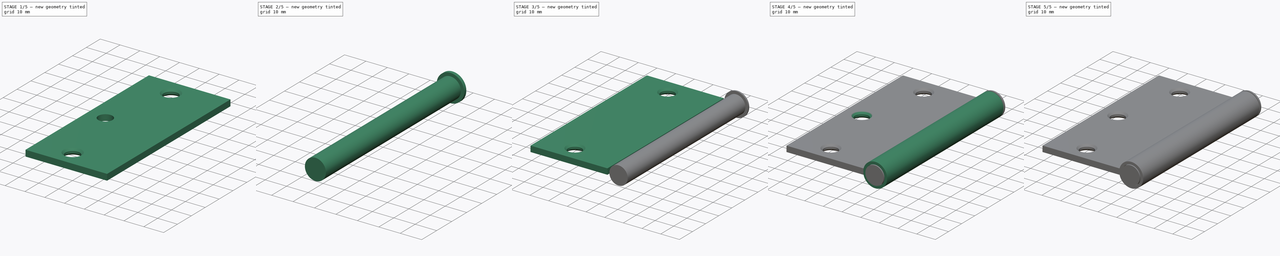
[diagram: build sequence overview — one tinted view per stage of 5, left to right]
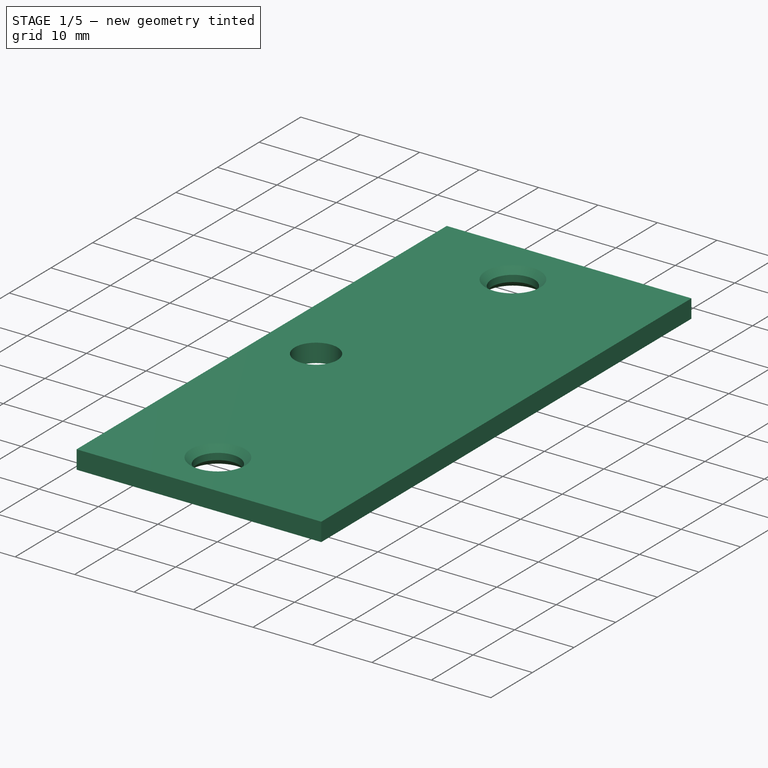
[diagram: stage 1 of 5 — iso view after this stage's code; geometry added in this stage tinted green]
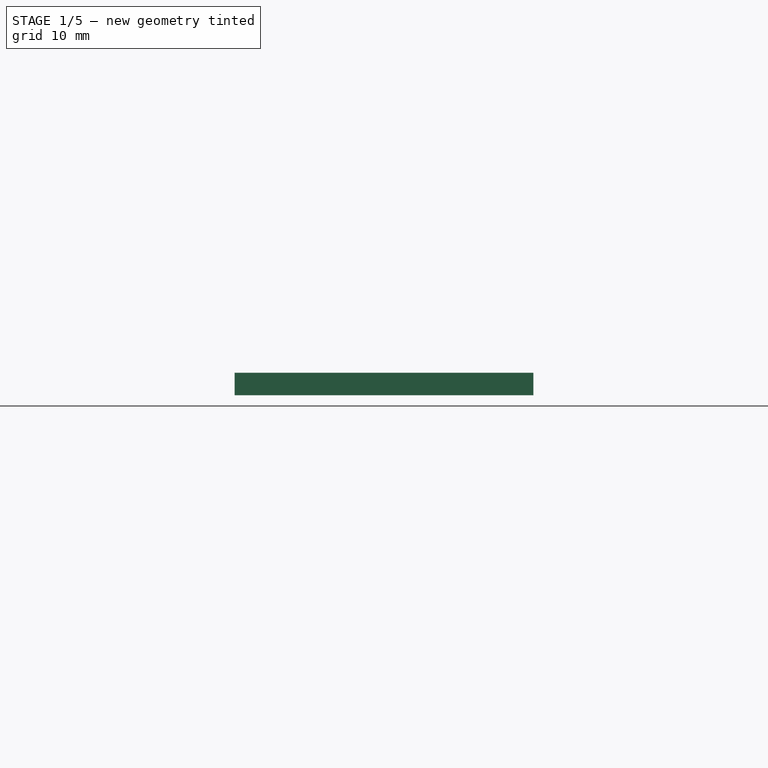
[diagram: stage 1 of 5 — front view after this stage's code; geometry added in this stage tinted green]
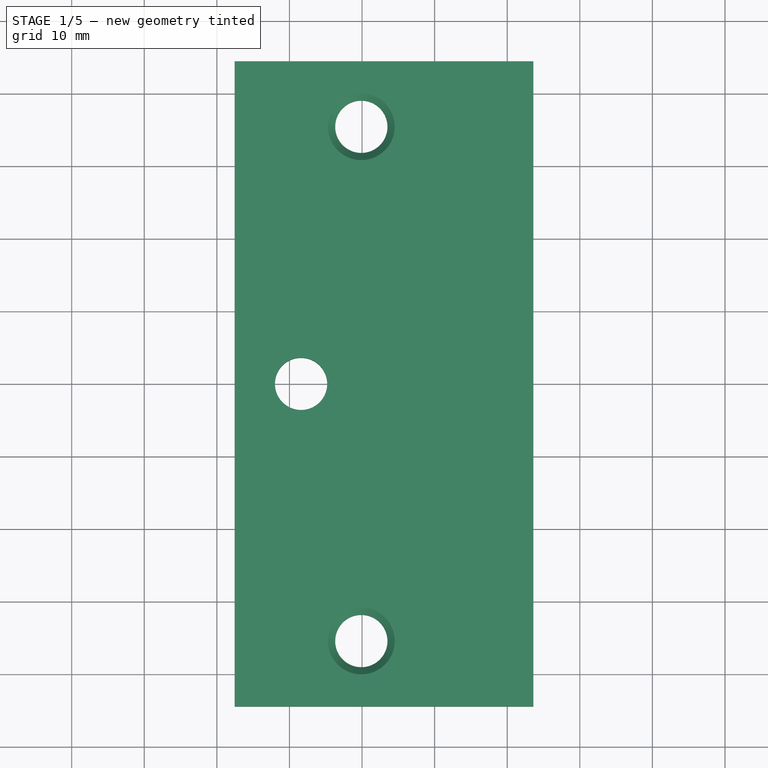
[diagram: stage 1 of 5 — top view after this stage's code; geometry added in this stage tinted green]
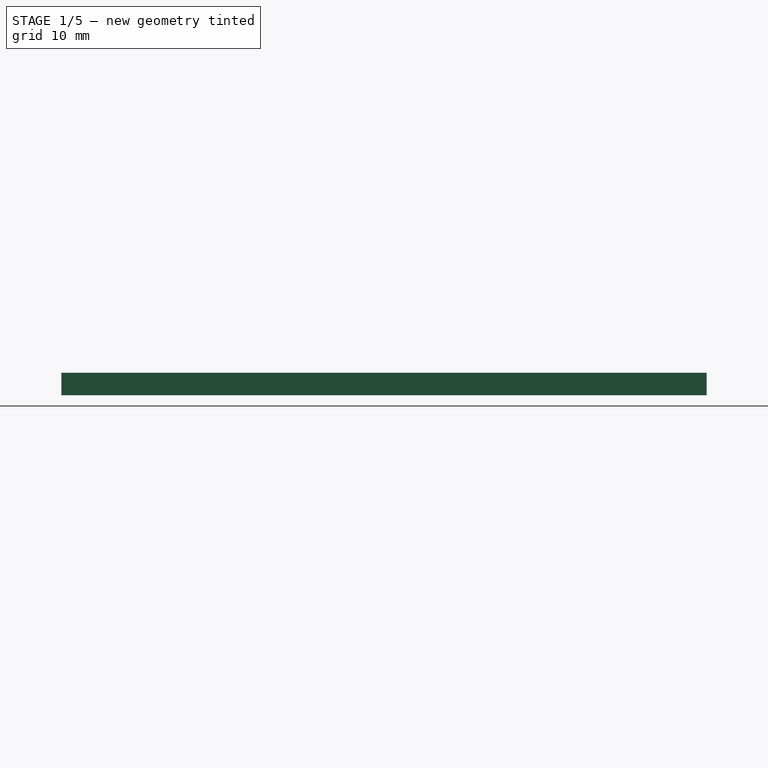
[diagram: stage 1 of 5 — right view after this stage's code; geometry added in this stage tinted green]
FCSTD DOCUMENT  (FreeCAD 0.19R24276 (Git))
Label: doorHinge
License: All rights reserved
LicenseURL: http://en.wikipedia.org/wiki/All_rights_reserved
objects: Sketcher::SketchObject×12, PartDesign::Pocket×9, PartDesign::Chamfer×9, PartDesign::Mirrored×6, PartDesign::AdditiveCylinder×4, PartDesign::Pad×3, PartDesign::Body×3, PartDesign::Fillet×1
note: 73 computed .brp shape members not serialized (recipe doc carries the construction recipe); baked Part::Feature solids carry a one-line shape summary decoded from their .brp

FEATURE [Sketcher::SketchObject] Sketch004
  FullyConstrained = true
  MapMode = 5
  Support = -> [XY_Plane001]
  sketch-geometry (4):
    g0: LineSegment StartX=-47.55 StartY=44.45 StartZ=0 EndX=-6.4 EndY=44.45 EndZ=0
    g1: LineSegment StartX=-6.4 StartY=44.45 StartZ=0 EndX=-6.4 EndY=-44.45 EndZ=0
    g2: LineSegment StartX=-6.4 StartY=-44.45 StartZ=0 EndX=-47.55 EndY=-44.45 EndZ=0
    g3: LineSegment StartX=-47.55 StartY=-44.45 StartZ=0 EndX=-47.55 EndY=44.45 EndZ=0
  constraints (11):
    c: Coincident(g0,g1)
    c: Coincident(g1,g2)
    c: Coincident(g2,g3)
    c: Coincident(g3,g0)
    c: Horizontal(g0)
    c: Horizontal(g2)
    c: Vertical(g3)
    c: DistanceY(g2,g0) = 88.9  'length'
    c: DistanceX(g0,g0) = 41.15
    c: Symmetric(g1,g0,g-1)
    c: DistanceX(g1,g-1) = 6.4
FEATURE [PartDesign::Pad] Pad001
  Direction = (1,1,1)
  Length = 3.1
  Length2 = 100
  Midplane = true
  Profile = -> Sketch004
  Refine = true
  Type = 0
FEATURE [Sketcher::SketchObject] Sketch005  label="hole003"
  ExternalGeometry = -> [Pad001]
  FullyConstrained = true
  MapMode = 5
  Placement = pos=(0,0,1.55) rot=(0,0,1;0rad)
  Support = -> [Pad001]
  sketch-geometry (1):
    g0: Circle CenterX=-30.1 CenterY=-35.43 CenterZ=0 NormalX=0 NormalY=0 NormalZ=1 AngleXU=0 Radius=3.6
  constraints (3):
    c: Radius(g0) = 3.6  'holerad'
    c: DistanceY(g0,g-1) = 35.43  'holelength'
    c: DistanceX(g-3,g0) = 17.45  'holedistwidth'
FEATURE [PartDesign::Pocket] Pocket003  label="hole002"
  BaseFeature = -> Pad001
  Length = 3.1
  Length2 = 100
  Profile = -> Sketch005
  Refine = true
  Type = 0
FEATURE [PartDesign::Chamfer] Chamfer006
  Angle = 45
  Base = -> Pocket003 [Edge14]
  BaseFeature = -> Pocket003
  ChamferType = 0
  FlipDirection = false
  Refine = true
  Size = 1
  Size2 = 1
  SupportTransform = false
FEATURE [PartDesign::Chamfer] Chamfer007
  Angle = 45
  Base = -> Chamfer006 [Edge17]
  BaseFeature = -> Chamfer006
  ChamferType = 0
  FlipDirection = false
  Refine = true
  Size = 1
  Size2 = 1
  SupportTransform = false
FEATURE [PartDesign::Mirrored] Mirrored001
  BaseFeature = -> Chamfer007
  MirrorPlane = -> XZ_Plane001
  Originals = -> [Chamfer007,Chamfer006,Pocket003]
  Refine = true
FEATURE [Sketcher::SketchObject] Sketch003
  ExternalGeometry = -> [Mirrored001]
  FullyConstrained = true
  MapMode = 5
  Placement = pos=(0,0,1.55) rot=(0,0,1;0rad)
  Support = -> [Mirrored001]
  expr: Constraints[0] = <<hole003>>.Constraints.holerad
  sketch-geometry (1):
    g0: Circle CenterX=-38.4 CenterY=0 CenterZ=0 NormalX=0 NormalY=0 NormalZ=1 AngleXU=0 Radius=3.6
  constraints (3):
    c: Radius(g0) = 3.6
    c: DistanceX(g-3,g0) = 9.15
    c: DistanceY(g0,g-1) = 0
FEATURE [PartDesign::Pocket] Pocket002
  BaseFeature = -> Mirrored001
  Length = 3.1
  Length2 = 100
  Profile = -> Sketch003
  Refine = true
  Type = 0
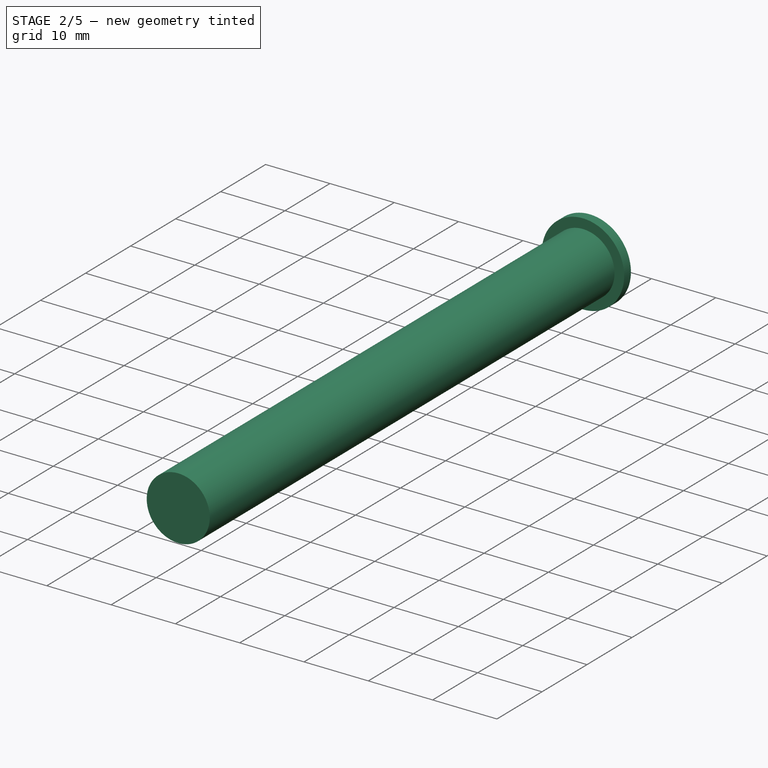
[diagram: stage 2 of 5 — iso view after this stage's code; geometry added in this stage tinted green]
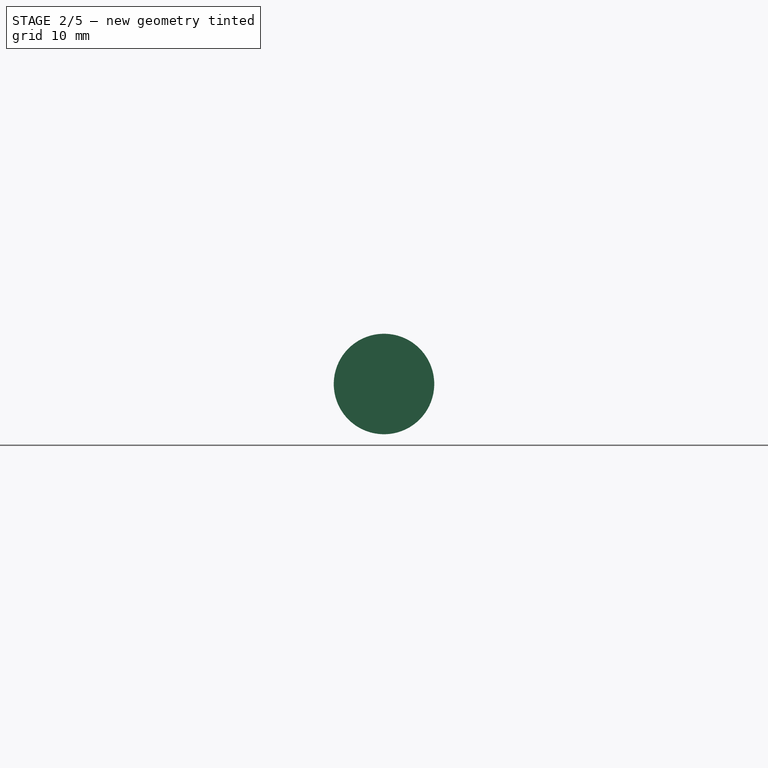
[diagram: stage 2 of 5 — front view after this stage's code; geometry added in this stage tinted green]
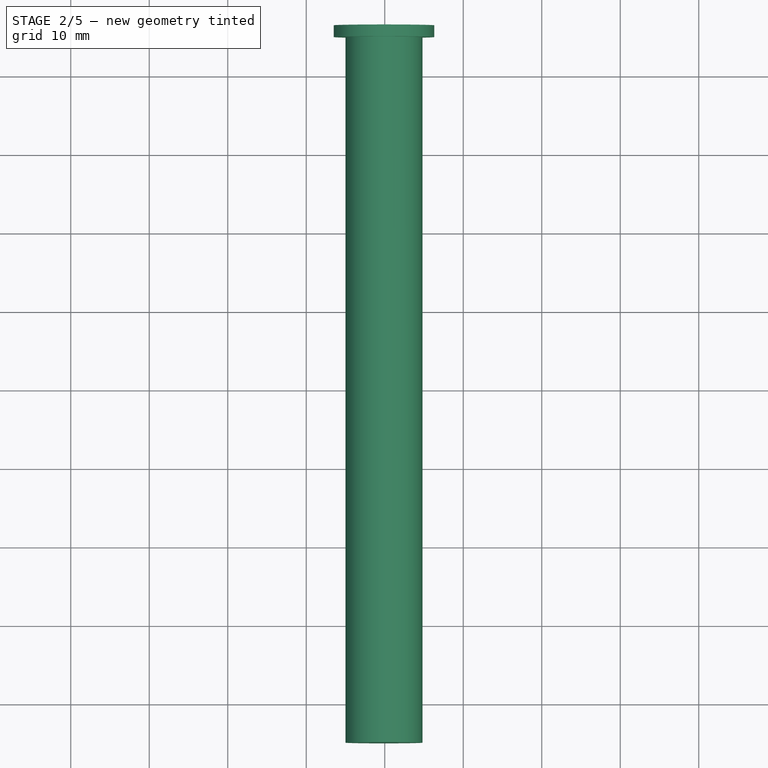
[diagram: stage 2 of 5 — top view after this stage's code; geometry added in this stage tinted green]
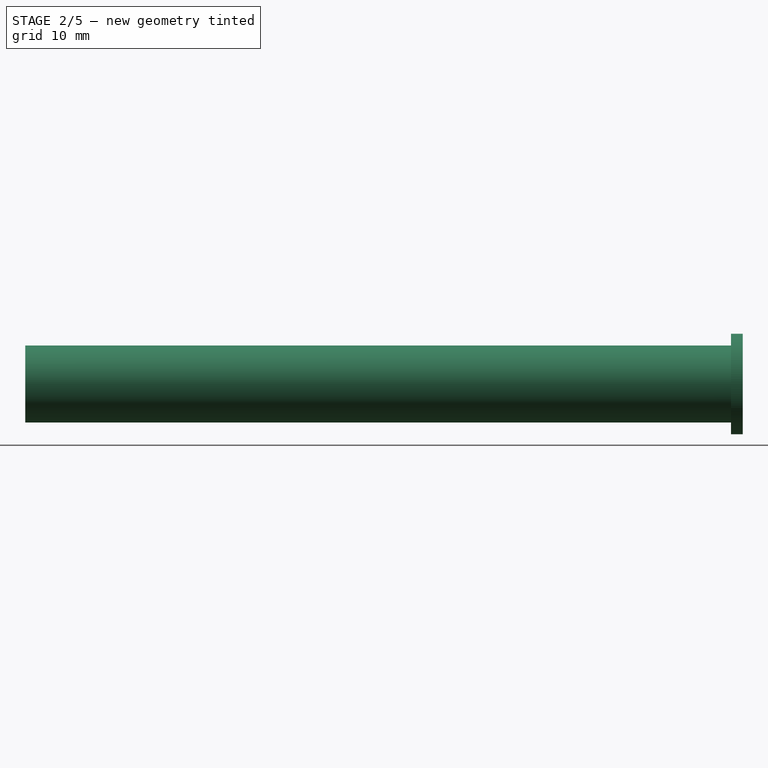
[diagram: stage 2 of 5 — right view after this stage's code; geometry added in this stage tinted green]
FEATURE [PartDesign::Chamfer] Chamfer004
  Angle = 45
  Base = -> Pocket002 [Edge19]
  BaseFeature = -> Pocket002
  ChamferType = 0
  FlipDirection = false
  Refine = true
  Size = 1
  Size2 = 1
  SupportTransform = false
FEATURE [PartDesign::Chamfer] Chamfer008
  Angle = 45
  Base = -> Chamfer004 [Edge23]
  BaseFeature = -> Chamfer004
  ChamferType = 0
  FlipDirection = false
  Refine = true
  Size = 1
  Size2 = 1
  SupportTransform = false
FEATURE [PartDesign::AdditiveCylinder] Cylinder  label="shortcyl"
  Angle = 360
  AttacherType = Attacher::AttachEngine3D
  AttachmentOffset = pos=(0,-0.1,30.93) rot=(0,0,1;0rad)
  BaseFeature = -> Chamfer008
  Height = 13.52
  MapMode = 2
  Placement = pos=(-0.1,30.93,-1.21e-14) rot=(0.57735,0.57735,0.57735;4.18879rad)
  Radius = 6.4
  Refine = true
  Support = -> [Z_Axis001]
  expr: .AttachmentOffset.Base.z = <<Sketch004>>.Constraints.length / 2 - Height
FEATURE [PartDesign::Mirrored] Mirrored002
  BaseFeature = -> Cylinder
  MirrorPlane = -> XZ_Plane001
  Originals = -> [Cylinder]
  Placement = pos=(-0.1,30.93,-1.2e-14) rot=(0.57735,0.57735,0.57735;4.18879rad)
  Refine = true
FEATURE [PartDesign::AdditiveCylinder] Cylinder001
  Angle = 360
  AttacherType = Attacher::AttachEngine3D
  AttachmentOffset = pos=(0,-0.1,-6.76) rot=(0,0,1;0rad)
  BaseFeature = -> Mirrored002
  Height = 13.52
  MapMode = 2
  Placement = pos=(-0.1,-6.76,2.6e-15) rot=(0.57735,0.57735,0.57735;4.18879rad)
  Radius = 6.4
  Refine = true
  Support = -> [Z_Axis001]
  expr: Radius = <<shortcyl>>.Radius
  expr: Height = <<shortcyl>>.Height
  expr: .AttachmentOffset.Base.z = -Height / 2
FEATURE [PartDesign::Body] Body001
  Group = -> [Sketch004,Pad001,Sketch005,Pocket003,Chamfer006,Chamfer007,Mirrored001,Sketch003,Pocket002,Chamfer004,Chamfer005,Chamfer008,Cylinder,Mirrored002,Cylinder001,Sketch006,Pocket004,Sketch010,Pocket008,Mirrored005]
  Origin = -> Origin001
  Placement = pos=(-0.2,0,0) rot=(0,1,0;3.14159rad)
  Tip = -> Mirrored005
FEATURE [Sketcher::SketchObject] Sketch011
  FullyConstrained = true
  MapMode = 5
  Placement = pos=(0,0,0) rot=(1,0,0;1.5708rad)
  Support = -> [XZ_Plane002]
  expr: Constraints[0] = <<posthole>>.Constraints.postrad - 0.1mm
  sketch-geometry (1):
    g0: Circle CenterX=-0.1 CenterY=0 CenterZ=0 NormalX=0 NormalY=0 NormalZ=1 AngleXU=0 Radius=4.9
  constraints (3):
    c: Radius(g0) = 4.9
    c: DistanceY(g0,g-1) = 0
    c: DistanceX(g0,g-1) = 0.1
FEATURE [PartDesign::Pad] Pad002
  Direction = (1,1,1)
  Length = 89.9
  Length2 = 100
  Midplane = true
  Placement = pos=(0,0,0) rot=(1,0,0;1.5708rad)
  Profile = -> Sketch011
  Refine = true
  Type = 0
  expr: Length = <<hinge>>.Constraints.length + 1mm
FEATURE [PartDesign::AdditiveCylinder] Cylinder003
  Angle = 360
  AttacherType = Attacher::AttachEngine3D
  AttachmentOffset = pos=(-0.1,0,0) rot=(0,0,1;0rad)
  BaseFeature = -> Pad002
  Height = 1.5
  MapMode = 5
  Placement = pos=(-0.1,44.95,-1.99e-14) rot=(-1,0,0;1.5708rad)
  Radius = 6.4
  Refine = true
  Support = -> [Pad002]
  expr: Radius = <<shortcyl>>.Radius
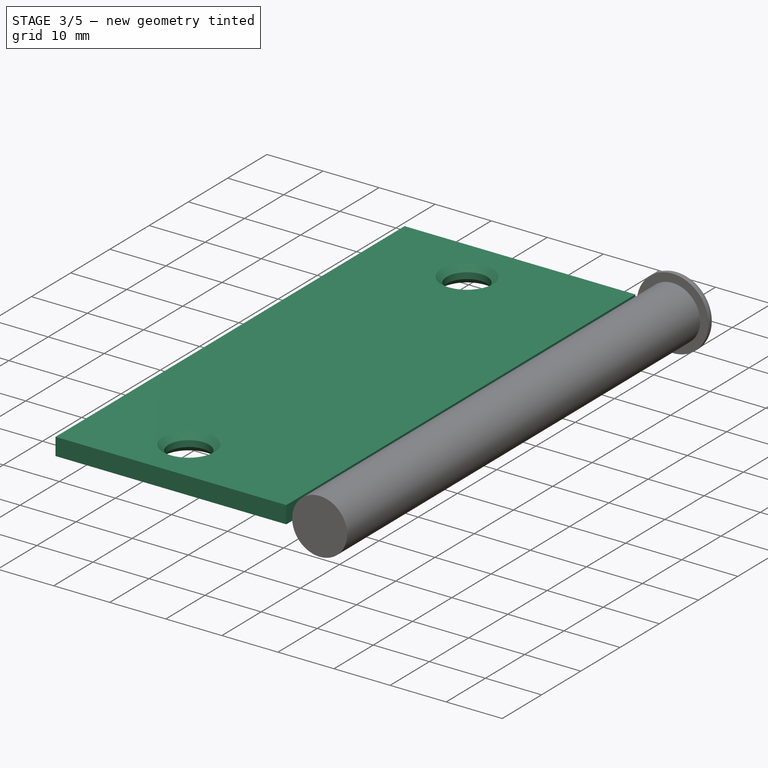
[diagram: stage 3 of 5 — iso view after this stage's code; geometry added in this stage tinted green]
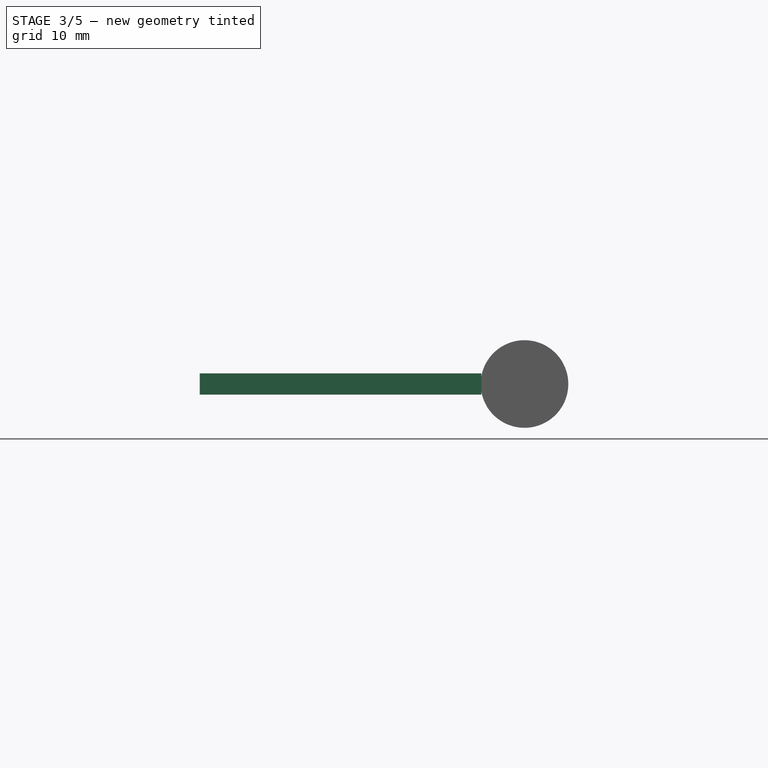
[diagram: stage 3 of 5 — front view after this stage's code; geometry added in this stage tinted green]
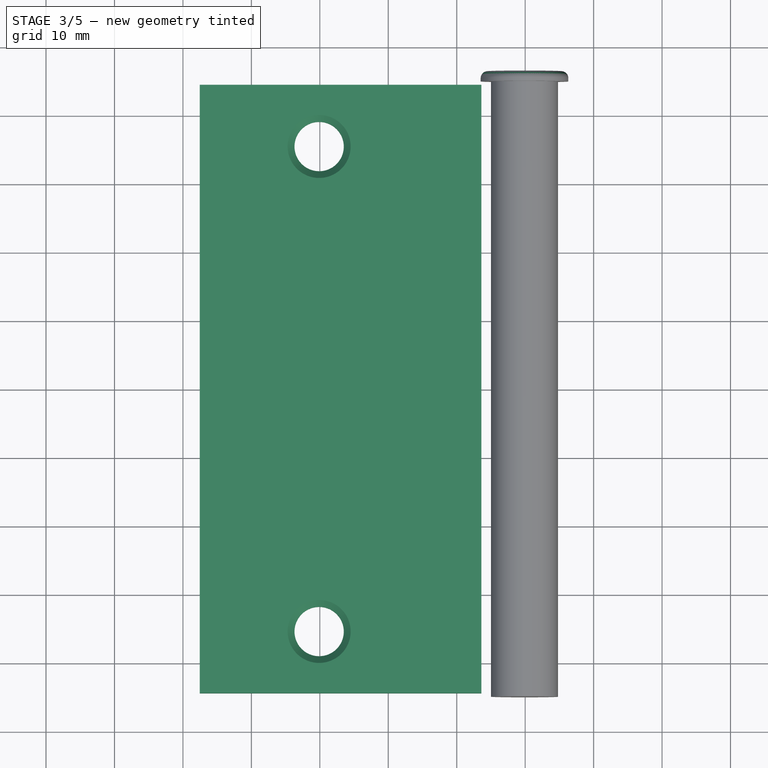
[diagram: stage 3 of 5 — top view after this stage's code; geometry added in this stage tinted green]
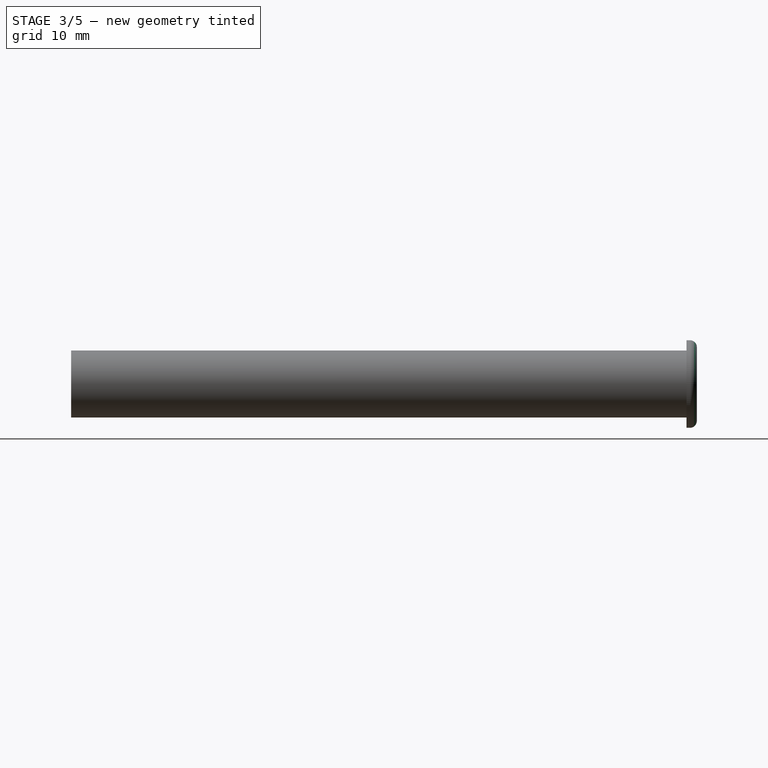
[diagram: stage 3 of 5 — right view after this stage's code; geometry added in this stage tinted green]
FEATURE [Sketcher::SketchObject] Sketch  label="hinge"
  FullyConstrained = true
  MapMode = 5
  Support = -> [XY_Plane]
  expr: Constraints[10] = <<shortcyl>>.Radius
  sketch-geometry (4):
    g0: LineSegment StartX=-47.55 StartY=44.45 StartZ=0 EndX=-6.4 EndY=44.45 EndZ=0
    g1: LineSegment StartX=-6.4 StartY=44.45 StartZ=0 EndX=-6.4 EndY=-44.45 EndZ=0
    g2: LineSegment StartX=-6.4 StartY=-44.45 StartZ=0 EndX=-47.55 EndY=-44.45 EndZ=0
    g3: LineSegment StartX=-47.55 StartY=-44.45 StartZ=0 EndX=-47.55 EndY=44.45 EndZ=0
  constraints (11):
    c: Coincident(g0,g1)
    c: Coincident(g1,g2)
    c: Coincident(g2,g3)
    c: Coincident(g3,g0)
    c: Horizontal(g0)
    c: Horizontal(g2)
    c: Vertical(g3)
    c: DistanceY(g2,g0) = 88.9  'length'
    c: DistanceX(g0,g0) = 41.15
    c: Symmetric(g1,g0,g-1)
    c: DistanceX(g1,g-1) = 6.4
FEATURE [PartDesign::Pad] Pad  label="hingePad"
  Direction = (1,1,1)
  Length = 3.1
  Length2 = 100
  Midplane = true
  Profile = -> Sketch
  Refine = true
  Type = 0
FEATURE [Sketcher::SketchObject] Sketch001  label="hole001"
  ExternalGeometry = -> [Pad]
  FullyConstrained = true
  MapMode = 5
  Placement = pos=(0,0,1.55) rot=(0,0,1;0rad)
  Support = -> [Pad]
  sketch-geometry (1):
    g0: Circle CenterX=-30.1 CenterY=-35.43 CenterZ=0 NormalX=0 NormalY=0 NormalZ=1 AngleXU=0 Radius=3.6
  constraints (3):
    c: Radius(g0) = 3.6  'holerad'
    c: DistanceY(g0,g-1) = 35.43  'holelength'
    c: DistanceX(g-3,g0) = 17.45  'holedistwidth'
FEATURE [PartDesign::Pocket] Pocket  label="hole"
  BaseFeature = -> Pad
  Length = 3.1
  Length2 = 100
  Profile = -> Sketch001
  Refine = true
  Type = 0
FEATURE [PartDesign::Chamfer] Chamfer
  Angle = 45
  Base = -> Pocket [Edge14]
  BaseFeature = -> Pocket
  ChamferType = 0
  FlipDirection = false
  Refine = true
  Size = 1
  Size2 = 1
  SupportTransform = false
FEATURE [PartDesign::Chamfer] Chamfer001
  Angle = 45
  Base = -> Chamfer [Edge17]
  BaseFeature = -> Chamfer
  ChamferType = 0
  FlipDirection = false
  Refine = true
  Size = 1
  Size2 = 1
  SupportTransform = false
FEATURE [PartDesign::Mirrored] Mirrored
  BaseFeature = -> Chamfer001
  MirrorPlane = -> XZ_Plane
  Originals = -> [Chamfer001,Chamfer,Pocket]
  Refine = true
FEATURE [PartDesign::Fillet] Fillet
  Base = -> Cylinder003 [Edge1]
  BaseFeature = -> Cylinder003
  Placement = pos=(-0.1,44.95,-3e-14) rot=(-1,0,0;1.5708rad)
  Radius = 1
  Refine = true
  SupportTransform = false
FEATURE [PartDesign::Body] Body002
  Group = -> [Sketch011,Pad002,Cylinder003,Fillet]
  Origin = -> Origin002
  Tip = -> Fillet
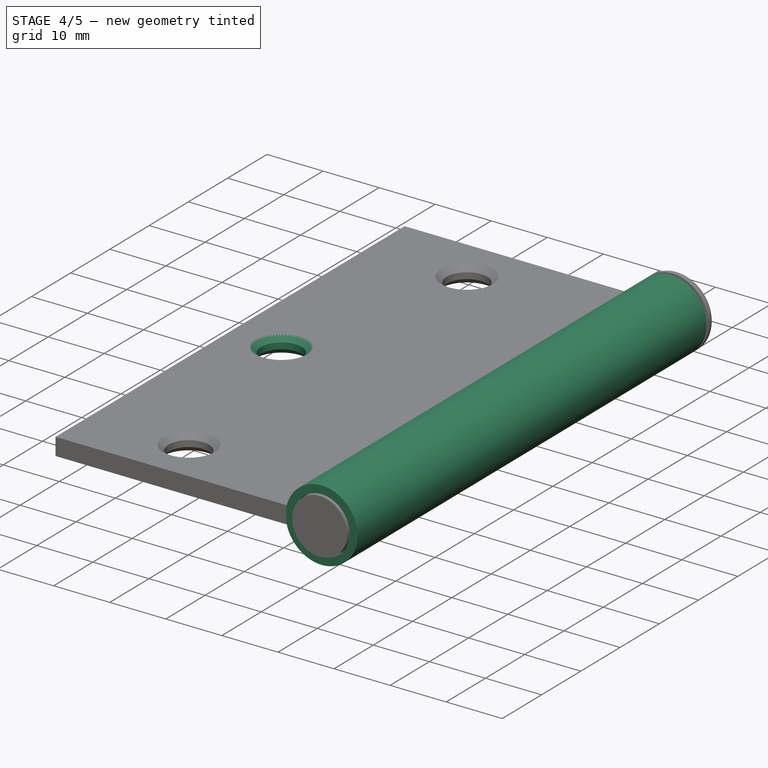
[diagram: stage 4 of 5 — iso view after this stage's code; geometry added in this stage tinted green]
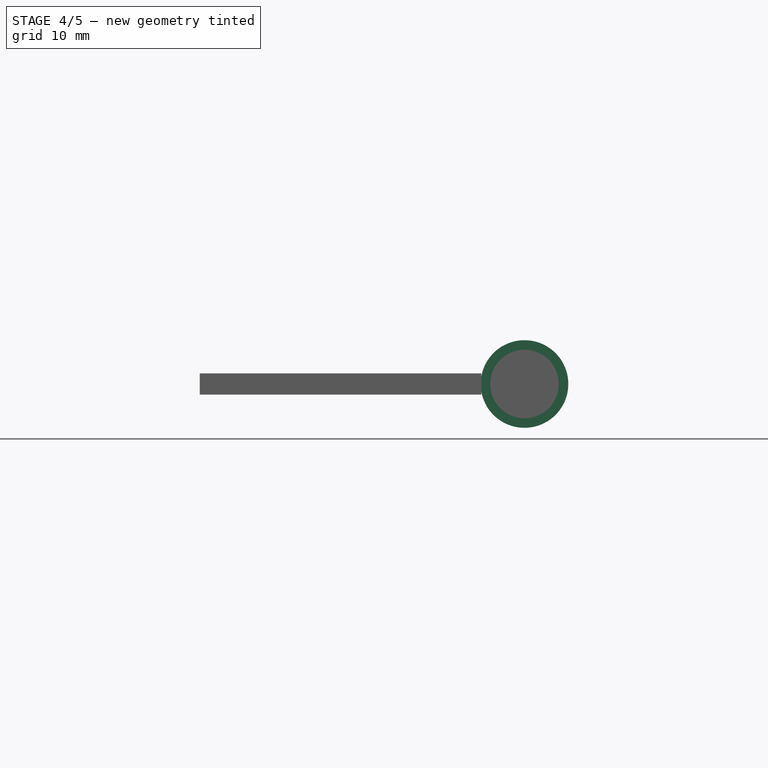
[diagram: stage 4 of 5 — front view after this stage's code; geometry added in this stage tinted green]
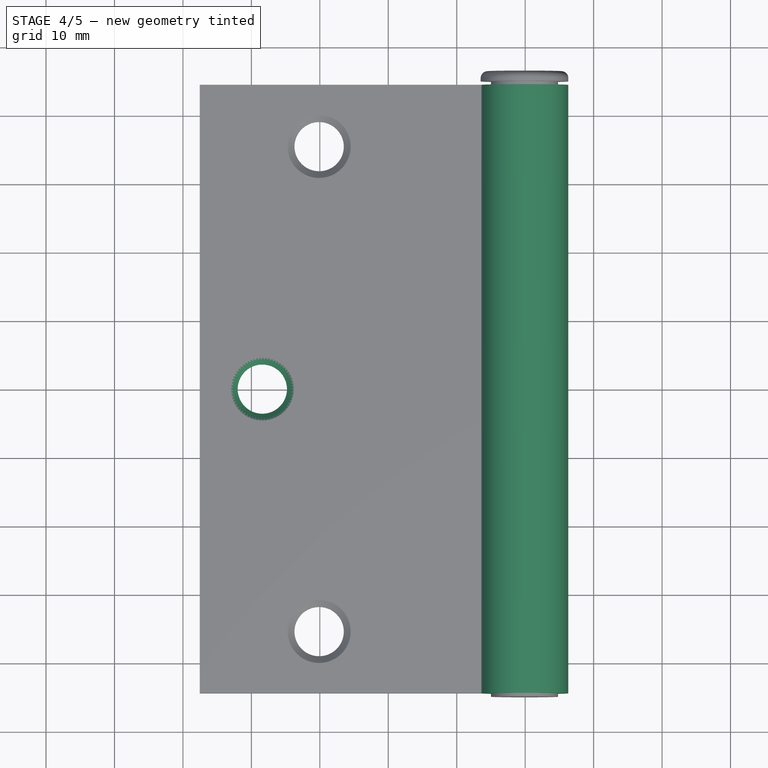
[diagram: stage 4 of 5 — top view after this stage's code; geometry added in this stage tinted green]
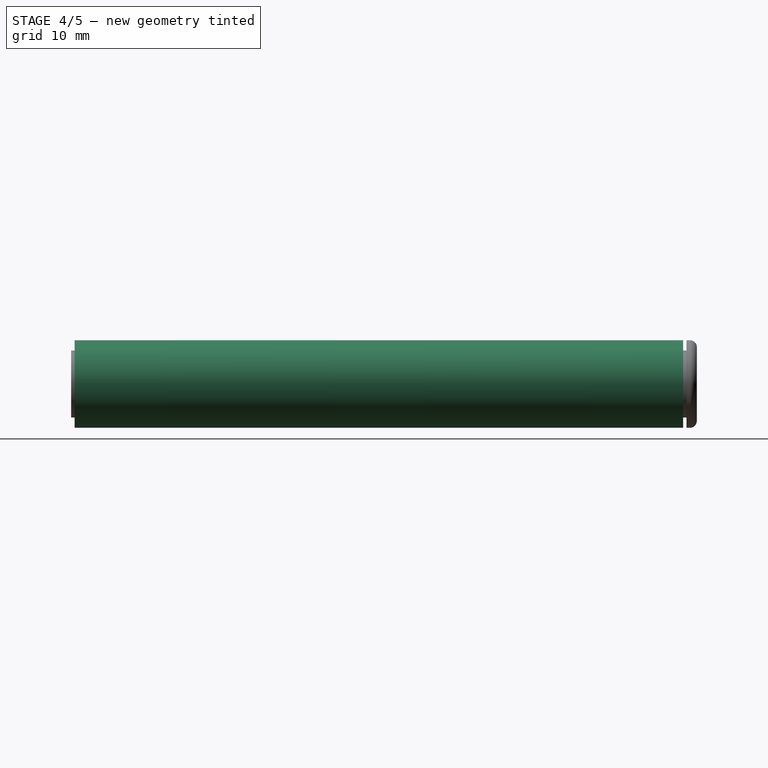
[diagram: stage 4 of 5 — right view after this stage's code; geometry added in this stage tinted green]
FEATURE [Sketcher::SketchObject] Sketch002
  ExternalGeometry = -> [Mirrored]
  FullyConstrained = true
  MapMode = 5
  Placement = pos=(0,0,1.55) rot=(0,0,1;0rad)
  Support = -> [Mirrored]
  expr: Constraints[0] = <<hole001>>.Constraints.holerad
  sketch-geometry (1):
    g0: Circle CenterX=-38.4 CenterY=0 CenterZ=0 NormalX=0 NormalY=0 NormalZ=1 AngleXU=0 Radius=3.6
  constraints (3):
    c: Radius(g0) = 3.6
    c: DistanceX(g-3,g0) = 9.15
    c: DistanceY(g0,g-1) = 0
FEATURE [PartDesign::Pocket] Pocket001
  BaseFeature = -> Mirrored
  Length = 3.1
  Length2 = 100
  Profile = -> Sketch002
  Refine = true
  Type = 0
FEATURE [PartDesign::Chamfer] Chamfer002
  Angle = 45
  Base = -> Pocket001 [Edge19]
  BaseFeature = -> Pocket001
  ChamferType = 0
  FlipDirection = false
  Refine = true
  Size = 1
  Size2 = 1
  SupportTransform = false
FEATURE [PartDesign::Chamfer] Chamfer003
  Angle = 45
  Base = -> Chamfer002 [Edge23]
  BaseFeature = -> Chamfer002
  ChamferType = 0
  FlipDirection = false
  Refine = true
  Size = 1
  Size2 = 1
  SupportTransform = false
FEATURE [PartDesign::AdditiveCylinder] Cylinder002  label="longcyl"
  Angle = 360
  AttacherType = Attacher::AttachEngine3D
  AttachmentOffset = pos=(-0.1,0,6.76) rot=(0,0,1;0rad)
  BaseFeature = -> Chamfer003
  Height = 24.17
  MapMode = 5
  Placement = pos=(-0.1,-6.76,-1.5e-15) rot=(1,0,0;1.5708rad)
  Radius = 6.4
  Refine = true
  Support = -> [XZ_Plane]
  expr: .AttachmentOffset.Base.z = <<shortcyl>>.Height / 2
  expr: Height = (Sketch.Constraints.length - 3 * <<shortcyl>>.Height) / 2
  expr: Radius = <<shortcyl>>.Radius
FEATURE [PartDesign::Mirrored] Mirrored003
  BaseFeature = -> Cylinder002
  MirrorPlane = -> XZ_Plane
  Originals = -> [Cylinder002]
  Placement = pos=(-0.1,-6.76,-2e-15) rot=(1,0,0;1.5708rad)
  Refine = true
FEATURE [Sketcher::SketchObject] Sketch007
  FullyConstrained = true
  MapMode = 5
  Placement = pos=(-0.1,30.93,-1.04e-14) rot=(-1,0,0;1.5708rad)
  Support = -> [Mirrored003]
  expr: Constraints[1] = Sketch006.Constraints.postrad
  sketch-geometry (1):
    g0: Circle CenterX=0 CenterY=0 CenterZ=0 NormalX=0 NormalY=0 NormalZ=1 AngleXU=0 Radius=5
  constraints (2):
    c: Coincident(g0,g-1)
    c: Radius(g0) = 5
FEATURE [PartDesign::Pocket] Pocket005
  BaseFeature = -> Mirrored003
  Length = 61.86
  Length2 = 100
  Placement = pos=(-0.1,-6.76,-2e-15) rot=(1,0,0;1.5708rad)
  Profile = -> Sketch007
  Refine = true
  Type = 0
  expr: Length = <<longcyl>>.Height * 2 + <<shortcyl>>.Height
FEATURE [Sketcher::SketchObject] Sketch006  label="posthole"
  ExternalGeometry = -> [Cylinder001]
  FullyConstrained = true
  MapMode = 5
  Placement = pos=(-0.1,44.45,5.7e-15) rot=(-0.57735,-0.57735,-0.57735;2.0944rad)
  Support = -> [Cylinder001]
  sketch-geometry (1):
    g0: Circle CenterX=0 CenterY=0 CenterZ=0 NormalX=0 NormalY=0 NormalZ=1 AngleXU=0 Radius=5
  constraints (2):
    c: Radius(g0) = 5  'postrad'
    c: Coincident(g-1,g0)
FEATURE [PartDesign::Pocket] Pocket004
  BaseFeature = -> Cylinder001
  Length = 88.9
  Length2 = 100
  Placement = pos=(-0.1,-6.76,3e-15) rot=(0.57735,0.57735,0.57735;4.18879rad)
  Profile = -> Sketch006
  Refine = true
  Type = 0
  expr: Length = Sketch004.Constraints.length
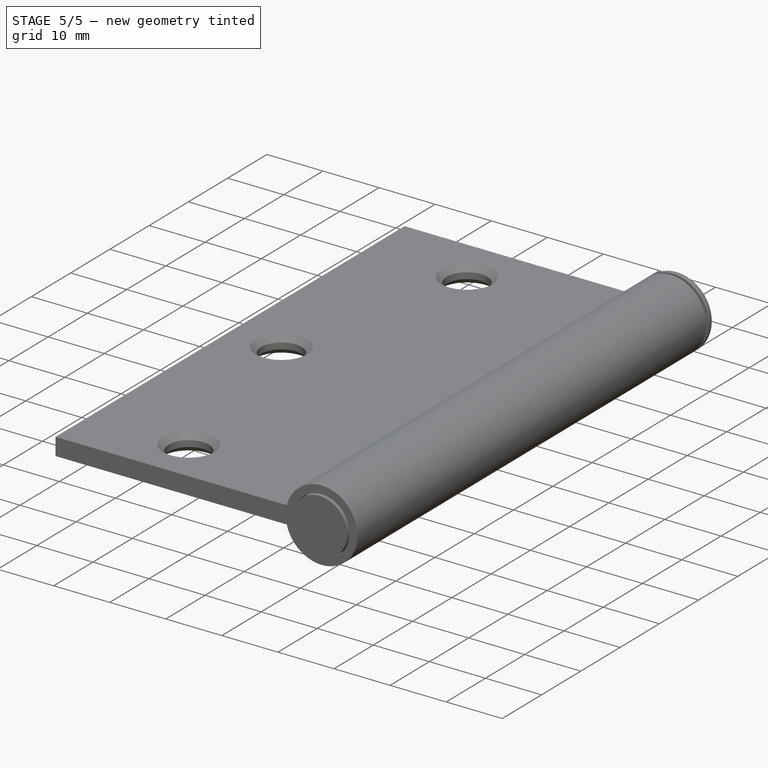
[diagram: stage 5 of 5 — iso view after this stage's code; geometry added in this stage tinted green]
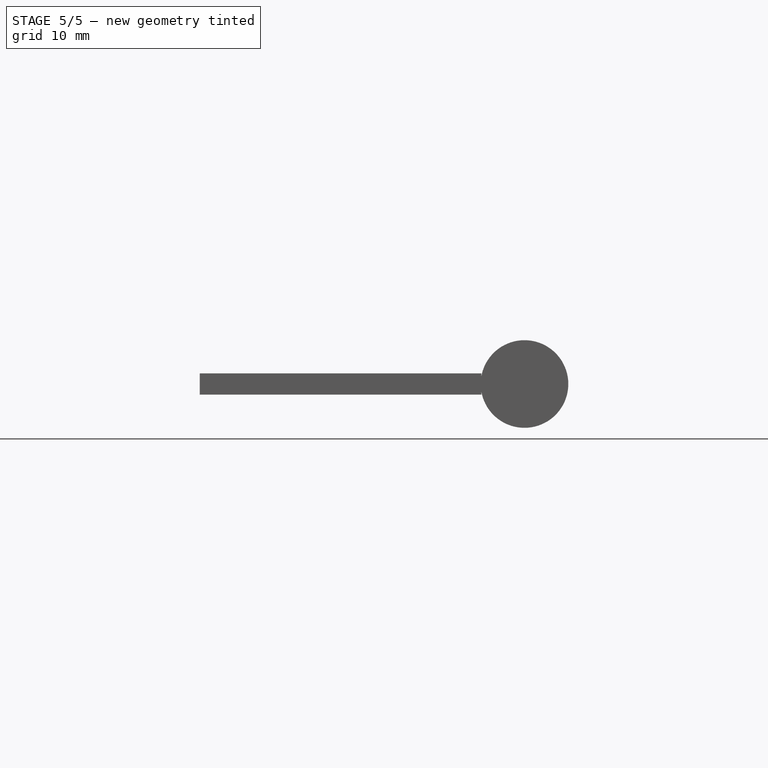
[diagram: stage 5 of 5 — front view after this stage's code; geometry added in this stage tinted green]
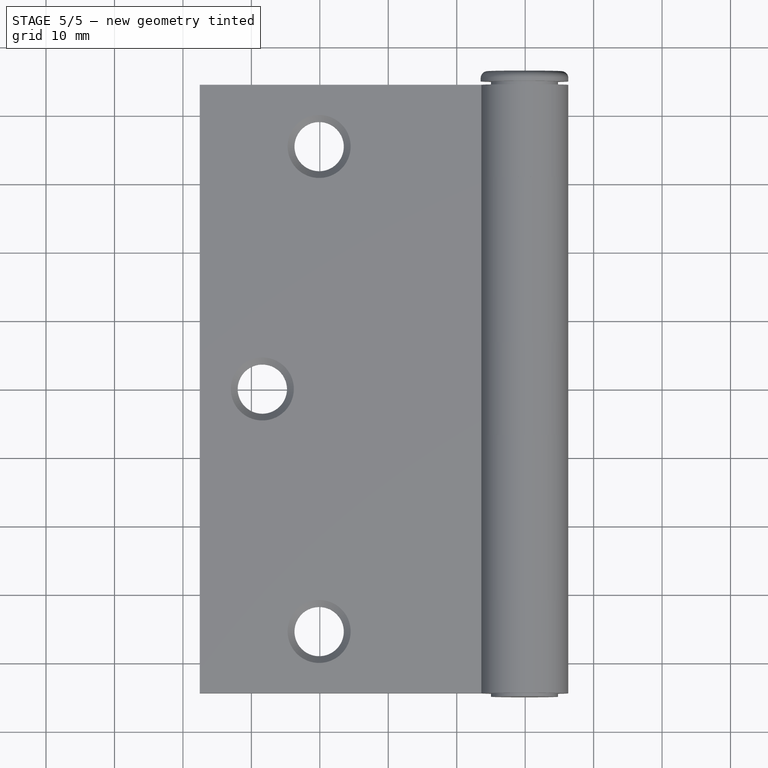
[diagram: stage 5 of 5 — top view after this stage's code; geometry added in this stage tinted green]
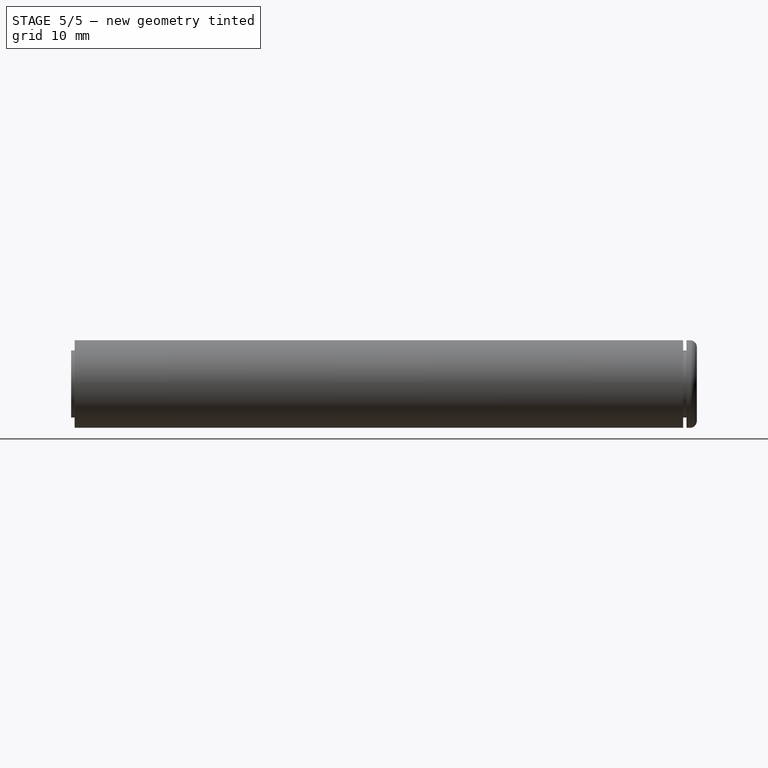
[diagram: stage 5 of 5 — right view after this stage's code; geometry added in this stage tinted green]
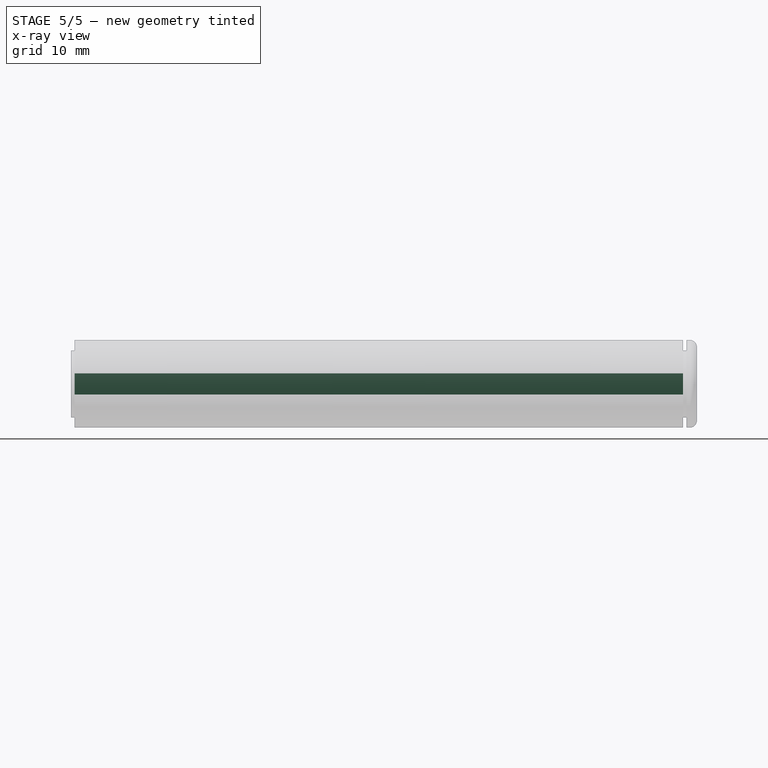
[diagram: stage 5 of 5 — x-ray composite at the right view; earlier geometry ghosted, this stage's added geometry solid]
FEATURE [PartDesign::Chamfer] Chamfer005
  Angle = 45
  Base = -> Chamfer004 [Edge23]
  BaseFeature = -> Chamfer004
  ChamferType = 0
  FlipDirection = false
  Refine = true
  Size = 1
  Size2 = 1
  SupportTransform = false
FEATURE [Sketcher::SketchObject] Sketch008  label="recess"
  ExternalGeometry = -> [Pocket005]
  FullyConstrained = true
  MapMode = 5
  Placement = pos=(-0.1,-6.76,1.55) rot=(0,0,1;3.14159rad)
  Support = -> [Pocket005]
  expr: Constraints[9] = <<shortcyl>>.Height
  sketch-geometry (4):
    g0: LineSegment StartX=6.3 StartY=-51.21 StartZ=0 EndX=6.6 EndY=-51.21 EndZ=0
    g1: LineSegment StartX=6.6 StartY=-51.21 StartZ=0 EndX=6.6 EndY=-37.69 EndZ=0
    g2: LineSegment StartX=6.6 StartY=-37.69 StartZ=0 EndX=6.3 EndY=-37.69 EndZ=0
    g3: LineSegment StartX=6.3 StartY=-37.69 StartZ=0 EndX=6.3 EndY=-51.21 EndZ=0
  constraints (11):
    c: Coincident(g0,g1)
    c: Coincident(g1,g2)
    c: Coincident(g2,g3)
    c: Coincident(g3,g0)
    c: Horizontal(g0)
    c: Horizontal(g2)
    c: Vertical(g1)
    c: Vertical(g3)
    c: DistanceX(g0,g0) = 0.3  'recess'
    c: DistanceY(g3,g3) = 13.52
    c: Coincident(g0,g-3)
FEATURE [PartDesign::Pocket] Pocket006
  BaseFeature = -> Pocket005
  Length = 3.1
  Length2 = 100
  Placement = pos=(-0.1,-6.76,-2e-15) rot=(1,0,0;1.5708rad)
  Profile = -> Sketch008
  Refine = true
  Type = 0
  expr: Length = <<hingePad>>.Length
FEATURE [PartDesign::Mirrored] Mirrored004
  BaseFeature = -> Pocket006
  MirrorPlane = -> XZ_Plane
  Originals = -> [Pocket006]
  Placement = pos=(-0.1,-6.76,-2e-15) rot=(1,0,0;1.5708rad)
  Refine = true
FEATURE [Sketcher::SketchObject] Sketch009
  ExternalGeometry = -> [Mirrored004]
  FullyConstrained = true
  MapMode = 5
  Placement = pos=(-0.1,-6.76,1.55) rot=(0,0,1;3.14159rad)
  Support = -> [Mirrored004]
  expr: Constraints[10] = <<shortcyl>>.Height
  expr: Constraints[9] = <<recess>>.Constraints.recess
  sketch-geometry (4):
    g0: LineSegment StartX=6.3 StartY=-13.52 StartZ=0 EndX=6.6 EndY=-13.52 EndZ=0
    g1: LineSegment StartX=6.6 StartY=-13.52 StartZ=0 EndX=6.6 EndY=0 EndZ=0
    g2: LineSegment StartX=6.6 StartY=0 StartZ=0 EndX=6.3 EndY=0 EndZ=0
    g3: LineSegment StartX=6.3 StartY=0 StartZ=0 EndX=6.3 EndY=-13.52 EndZ=0
  constraints (12):
    c: Coincident(g0,g1)
    c: Coincident(g1,g2)
    c: Coincident(g2,g3)
    c: Coincident(g3,g0)
    c: Horizontal(g0)
    c: Horizontal(g2)
    c: Vertical(g1)
    c: Vertical(g3)
    c: PointOnObject(g1,g-1)
    c: DistanceX(g0,g0) = 0.3
    c: DistanceY(g3,g3) = 13.52
    c: DistanceX(g-3,g0) = 0
FEATURE [PartDesign::Pocket] Pocket007
  BaseFeature = -> Mirrored004
  Length = 3.1
  Length2 = 100
  Placement = pos=(-0.1,-6.76,-2e-15) rot=(1,0,0;1.5708rad)
  Profile = -> Sketch009
  Refine = true
  Type = 0
  expr: Length = <<hingePad>>.Length
FEATURE [PartDesign::Body] Body
  Group = -> [Sketch,Pad,Sketch001,Pocket,Chamfer,Chamfer001,Mirrored,Sketch002,Pocket001,Chamfer002,Chamfer003,Cylinder002,Mirrored003,Sketch007,Pocket005,Sketch008,Pocket006,Mirrored004,Sketch009,Pocket007]
  Origin = -> Origin
  Tip = -> Pocket007
FEATURE [Sketcher::SketchObject] Sketch010  label="longrecess"
  ExternalGeometry = -> [Pocket004]
  FullyConstrained = true
  MapMode = 5
  Placement = pos=(-0.1,-6.76,-1.55) rot=(0,1,0;3.14159rad)
  Support = -> [Pocket004]
  expr: Constraints[8] = <<recess>>.Constraints.recess
  expr: Constraints[9] = <<longcyl>>.Height
  expr: Constraints[10] = <<shortcyl>>.Height
  sketch-geometry (4):
    g0: LineSegment StartX=6.6 StartY=37.69 StartZ=0 EndX=6.3 EndY=37.69 EndZ=0
    g1: LineSegment StartX=6.3 StartY=37.69 StartZ=0 EndX=6.3 EndY=13.52 EndZ=0
    g2: LineSegment StartX=6.3 StartY=13.52 StartZ=0 EndX=6.6 EndY=13.52 EndZ=0
    g3: LineSegment StartX=6.6 StartY=13.52 StartZ=0 EndX=6.6 EndY=37.69 EndZ=0
  constraints (12):
    c: Coincident(g0,g1)
    c: Coincident(g1,g2)
    c: Coincident(g2,g3)
    c: Coincident(g3,g0)
    c: Horizontal(g0)
    c: Horizontal(g2)
    c: Vertical(g1)
    c: Vertical(g3)
    c: DistanceX(g0,g0) = 0.3
    c: DistanceY(g3,g3) = 24.17
    c: DistanceY(g0,g-3) = 13.52
    c: DistanceX(g-3,g0) = 0
FEATURE [PartDesign::Pocket] Pocket008
  BaseFeature = -> Pocket004
  Length = 3.1
  Length2 = 100
  Placement = pos=(-0.1,-6.76,3e-15) rot=(0.57735,0.57735,0.57735;4.18879rad)
  Profile = -> Sketch010
  Refine = true
  Type = 0
  expr: Length = <<Pad001>>.Length
FEATURE [PartDesign::Mirrored] Mirrored005
  BaseFeature = -> Pocket008
  MirrorPlane = -> XZ_Plane001
  Originals = -> [Pocket008]
  Placement = pos=(-0.1,-6.76,3e-15) rot=(0.57735,0.57735,0.57735;4.18879rad)
  Refine = true
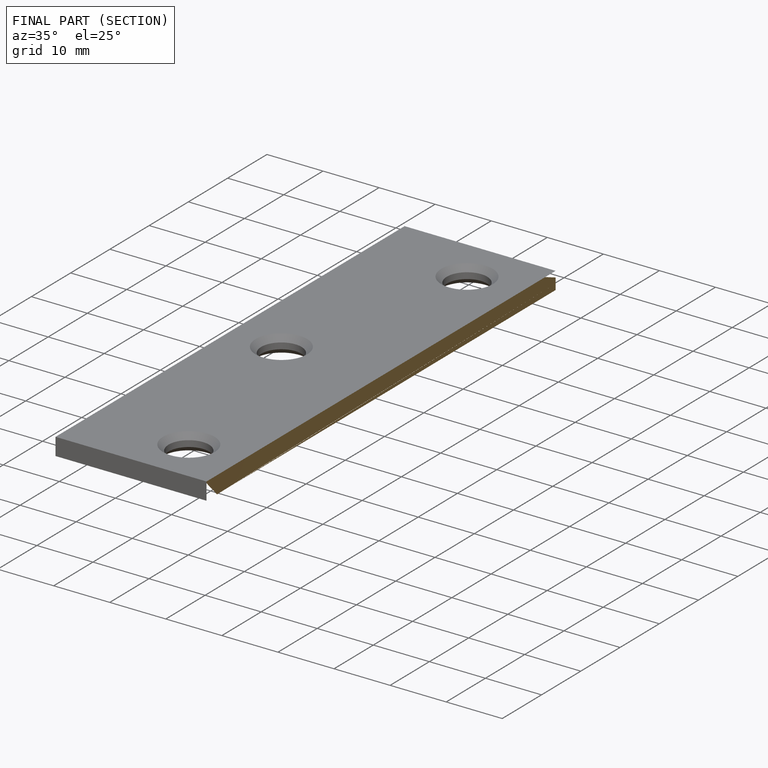
[diagram: finished part — half-section view (interior)]
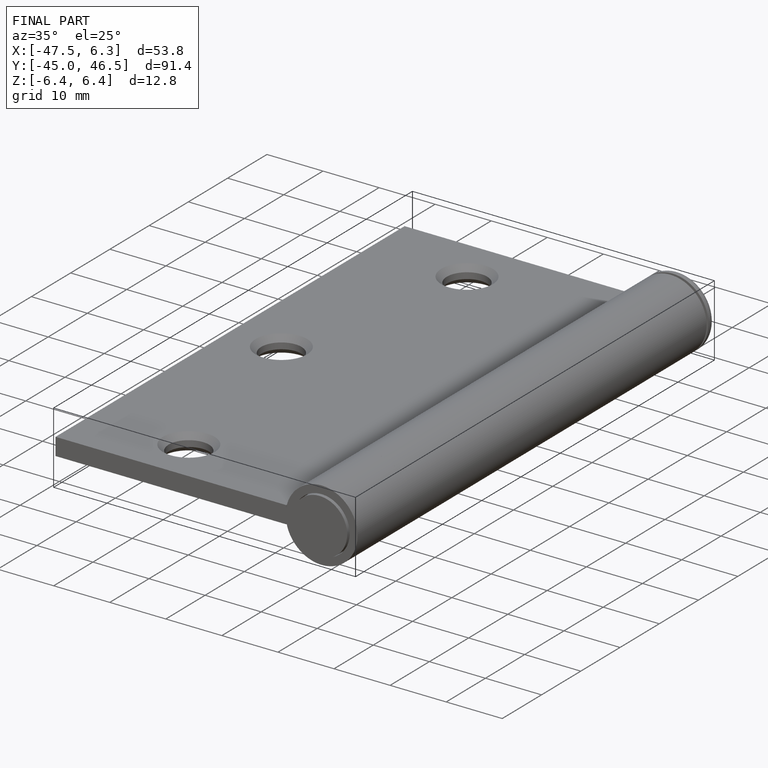
[diagram: finished part — iso view with bounding-box wireframe]
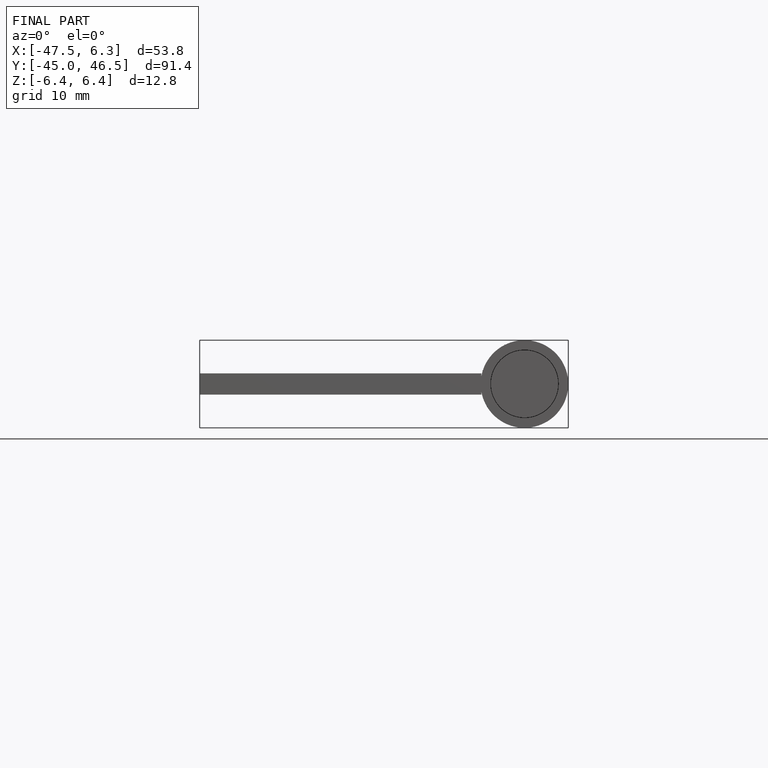
[diagram: finished part — front view with bounding-box wireframe]
